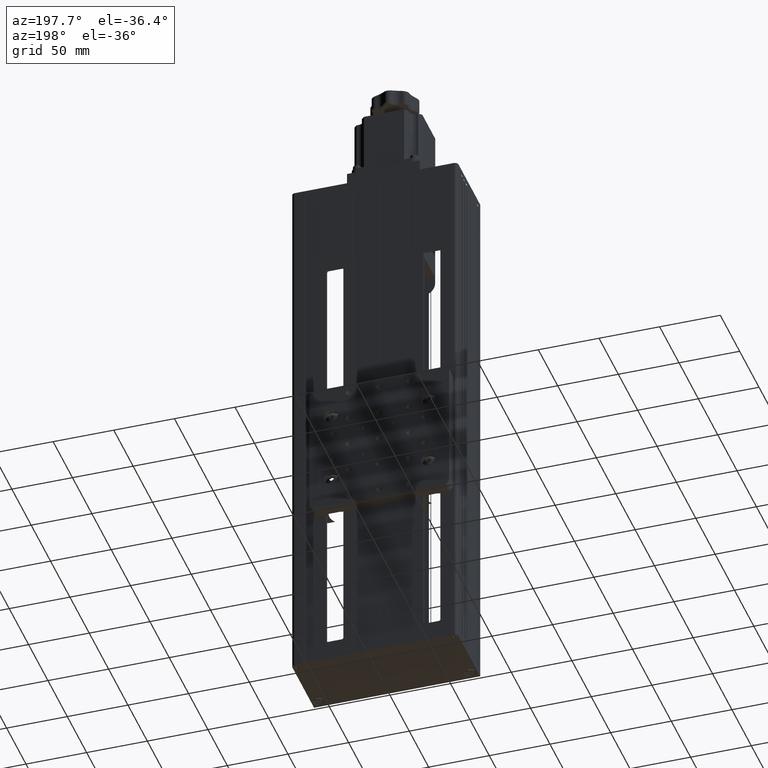
[diagram: clean part render]
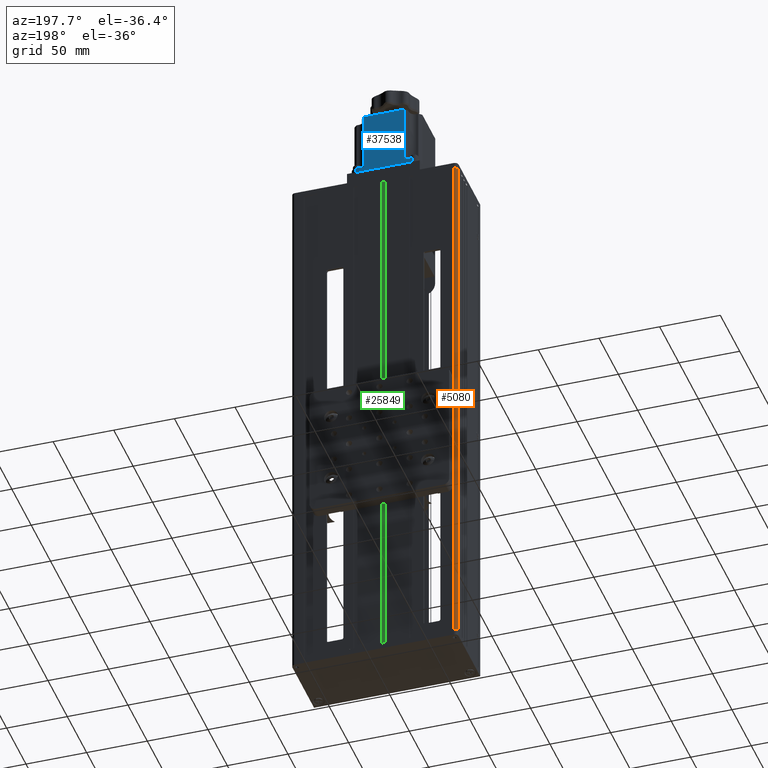
[diagram: same view with three faces highlighted in distinct colors, each labeled with its STEP entity id]
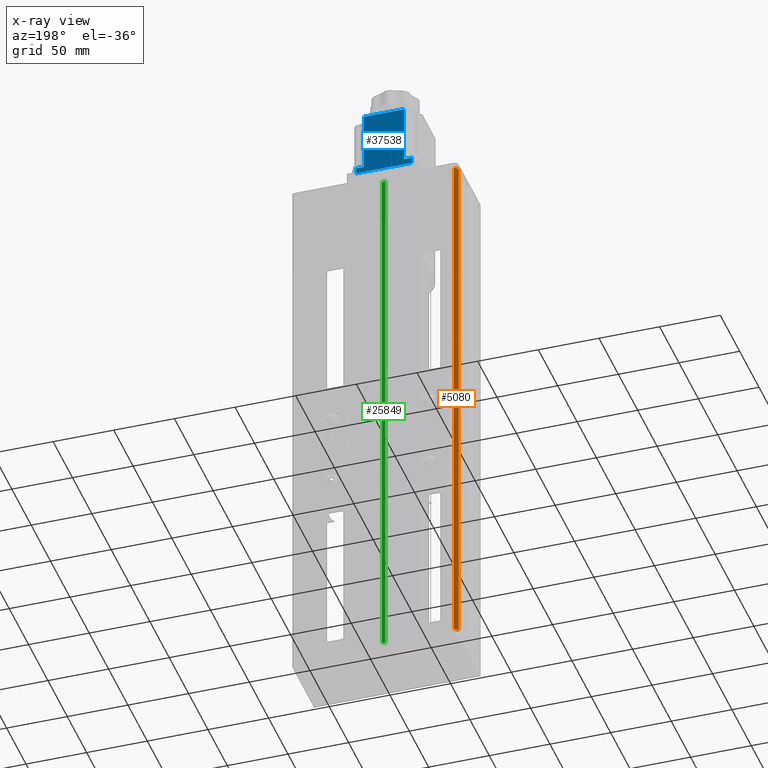
[diagram: x-ray of the same camera — body ghosted, the three highlighted faces saturated]
A machine part, auxiliary view with three faces highlighted in distinct colors.
The next image is the same camera in x-ray (body ghosted, the three faces saturated) — at least one of them is partly hidden behind the body in this view.
Their STEP definitions:

[orange] entity #5080 — the highlighted cylindrical surface (edge-blend (fillet) strip) has radius 3 mm, axis along (-0, -0, -1).
#2060 = CIRCLE ( 'NONE', #25355, 3.000000000000002700 ) ;
#3178 = CYLINDRICAL_SURFACE ( 'NONE', #9782, 3.000000000000002700 ) ;
#3221 = ORIENTED_EDGE ( 'NONE', *, *, #30543, .F. ) ;
#5080 = ADVANCED_FACE ( 'NONE', ( #16128 ), #3178, .T. ) ;
#5867 = CARTESIAN_POINT ( 'NONE',  ( -68.61080835603992500, 50.08234937935211000, 225.0000000000000000 ) ) ;
#7637 = VERTEX_POINT ( 'NONE', #13888 ) ;
#7799 = EDGE_CURVE ( 'NONE', #28491, #42836, #16029, .T. ) ;
#8061 = DIRECTION ( 'NONE',  ( 0.0000000000000000000, 0.0000000000000000000, 1.000000000000000000 ) ) ;
#8540 = CARTESIAN_POINT ( 'NONE',  ( -68.61080835603992500, 50.08234937935211000, -225.0000000000000000 ) ) ;
#9782 = AXIS2_PLACEMENT_3D ( 'NONE', #38899, #19245, #32554 ) ;
#12508 = DIRECTION ( 'NONE',  ( -0.0000000000000000000, -0.0000000000000000000, -1.000000000000000000 ) ) ;
#13888 = CARTESIAN_POINT ( 'NONE',  ( -68.61080835603992500, 50.08234937935211000, 225.0000000000000000 ) ) ;
#14277 = VERTEX_POINT ( 'NONE', #8540 ) ;
#14991 = VECTOR ( 'NONE', #34555, 1000.000000000000000 ) ;
#16029 = LINE ( 'NONE', #18239, #14991 ) ;
#16128 = FACE_OUTER_BOUND ( 'NONE', #39896, .T. ) ;
#16318 = CIRCLE ( 'NONE', #30899, 3.000000000000002700 ) ;
#16887 = CARTESIAN_POINT ( 'NONE',  ( -68.61080835603992500, 47.08234937935211000, 225.0000000000000000 ) ) ;
#18239 = CARTESIAN_POINT ( 'NONE',  ( -71.61080835603992500, 47.08234937935211000, 225.0000000000000000 ) ) ;
#19245 = DIRECTION ( 'NONE',  ( -0.0000000000000000000, -0.0000000000000000000, -1.000000000000000000 ) ) ;
#20209 = DIRECTION ( 'NONE',  ( 1.000000000000000000, 0.0000000000000000000, 0.0000000000000000000 ) ) ;
#25042 = ORIENTED_EDGE ( 'NONE', *, *, #26623, .T. ) ;
#25355 = AXIS2_PLACEMENT_3D ( 'NONE', #27919, #8061, #31253 ) ;
#25932 = EDGE_CURVE ( 'NONE', #14277, #42836, #2060, .T. ) ;
#26623 = EDGE_CURVE ( 'NONE', #7637, #14277, #32274, .T. ) ;
#27919 = CARTESIAN_POINT ( 'NONE',  ( -68.61080835603992500, 47.08234937935211000, -225.0000000000000000 ) ) ;
#28491 = VERTEX_POINT ( 'NONE', #31606 ) ;
#30543 = EDGE_CURVE ( 'NONE', #7637, #28491, #16318, .T. ) ;
#30899 = AXIS2_PLACEMENT_3D ( 'NONE', #16887, #40047, #20209 ) ;
#31253 = DIRECTION ( 'NONE',  ( 1.000000000000000000, 0.0000000000000000000, 0.0000000000000000000 ) ) ;
#31606 = CARTESIAN_POINT ( 'NONE',  ( -71.61080835603992500, 47.08234937935211000, 225.0000000000000000 ) ) ;
#32274 = LINE ( 'NONE', #5867, #40004 ) ;
#32554 = DIRECTION ( 'NONE',  ( -1.000000000000000000, 0.0000000000000000000, 0.0000000000000000000 ) ) ;
#33199 = ORIENTED_EDGE ( 'NONE', *, *, #25932, .T. ) ;
#34555 = DIRECTION ( 'NONE',  ( -0.0000000000000000000, -0.0000000000000000000, -1.000000000000000000 ) ) ;
#35207 = CARTESIAN_POINT ( 'NONE',  ( -71.61080835603992500, 47.08234937935211000, -225.0000000000000000 ) ) ;
#38899 = CARTESIAN_POINT ( 'NONE',  ( -68.61080835603992500, 47.08234937935211000, 225.0000000000000000 ) ) ;
#39896 = EDGE_LOOP ( 'NONE', ( #33199, #40624, #3221, #25042 ) ) ;
#40004 = VECTOR ( 'NONE', #12508, 1000.000000000000000 ) ;
#40047 = DIRECTION ( 'NONE',  ( 0.0000000000000000000, 0.0000000000000000000, 1.000000000000000000 ) ) ;
#40624 = ORIENTED_EDGE ( 'NONE', *, *, #7799, .F. ) ;
#42836 = VERTEX_POINT ( 'NONE', #35207 ) ;

[blue] entity #37538 — the highlighted planar face has unit normal (-0, -1, 0).
#193 = EDGE_CURVE ( 'NONE', #15866, #26335, #5019, .T. ) ;
#1162 = LINE ( 'NONE', #22450, #26503 ) ;
#3760 = FACE_OUTER_BOUND ( 'NONE', #34774, .T. ) ;
#4646 = LINE ( 'NONE', #19309, #13434 ) ;
#5019 = LINE ( 'NONE', #32890, #12772 ) ;
#5112 = EDGE_CURVE ( 'NONE', #23980, #11169, #19725, .T. ) ;
#5665 = PLANE ( 'NONE',  #9101 ) ;
#7599 = CARTESIAN_POINT ( 'NONE',  ( -27.18080835603993600, 48.58234937935198900, 244.0000000000000000 ) ) ;
#9101 = AXIS2_PLACEMENT_3D ( 'NONE', #18977, #42108, #22292 ) ;
#9175 = DIRECTION ( 'NONE',  ( -0.0000000000000000000, 0.0000000000000000000, 1.000000000000000000 ) ) ;
#9551 = CARTESIAN_POINT ( 'NONE',  ( 17.38919164396007100, 48.58234937935198900, 239.0000000000000000 ) ) ;
#9563 = VECTOR ( 'NONE', #15311, 1000.000000000000000 ) ;
#9746 = DIRECTION ( 'NONE',  ( 1.000000000000000000, -1.239088197126290600E-016, -0.0000000000000000000 ) ) ;
#9957 = ORIENTED_EDGE ( 'NONE', *, *, #31445, .T. ) ;
#10775 = ORIENTED_EDGE ( 'NONE', *, *, #34911, .T. ) ;
#11169 = VERTEX_POINT ( 'NONE', #42188 ) ;
#12772 = VECTOR ( 'NONE', #9746, 1000.000000000000000 ) ;
#13197 = ORIENTED_EDGE ( 'NONE', *, *, #5112, .F. ) ;
#13212 = CARTESIAN_POINT ( 'NONE',  ( 5.959191643960084100, 48.58234937935198900, 292.8000000000000100 ) ) ;
#13434 = VECTOR ( 'NONE', #39087, 1000.000000000000000 ) ;
#14574 = ORIENTED_EDGE ( 'NONE', *, *, #38293, .T. ) ;
#14642 = LINE ( 'NONE', #26624, #27048 ) ;
#14673 = ORIENTED_EDGE ( 'NONE', *, *, #37720, .T. ) ;
#15128 = CARTESIAN_POINT ( 'NONE',  ( 5.959191643960084100, 48.58234937935198900, 239.0000000000000000 ) ) ;
#15311 = DIRECTION ( 'NONE',  ( 1.000000000000000000, -1.239088197126290600E-016, -0.0000000000000000000 ) ) ;
#15577 = LINE ( 'NONE', #15128, #32153 ) ;
#15866 = VERTEX_POINT ( 'NONE', #31486 ) ;
#17008 = CARTESIAN_POINT ( 'NONE',  ( 12.38919164396007100, 48.58234937935198900, 239.0000000000000000 ) ) ;
#17223 = VERTEX_POINT ( 'NONE', #19201 ) ;
#17976 = ORIENTED_EDGE ( 'NONE', *, *, #18824, .T. ) ;
#18536 = CARTESIAN_POINT ( 'NONE',  ( 12.38919164396007100, 48.58234937935198900, 244.0000000000000000 ) ) ;
#18824 = EDGE_CURVE ( 'NONE', #40703, #18902, #4646, .T. ) ;
#18902 = VERTEX_POINT ( 'NONE', #13212 ) ;
#18977 = CARTESIAN_POINT ( 'NONE',  ( 17.38919164396007100, 48.58234937935198900, 239.0000000000000000 ) ) ;
#19201 = CARTESIAN_POINT ( 'NONE',  ( 5.959191643960084100, 48.58234937935198900, 244.0000000000000000 ) ) ;
#19309 = CARTESIAN_POINT ( 'NONE',  ( 17.38919164396007100, 48.58234937935198900, 292.8000000000000100 ) ) ;
#19725 = LINE ( 'NONE', #9551, #29601 ) ;
#22292 = DIRECTION ( 'NONE',  ( -1.000000000000000000, 1.239088197126290600E-016, 0.0000000000000000000 ) ) ;
#22450 = CARTESIAN_POINT ( 'NONE',  ( -33.61080835603996100, 48.58234937935198900, 239.0000000000000000 ) ) ;
#23111 = DIRECTION ( 'NONE',  ( -0.0000000000000000000, 0.0000000000000000000, 1.000000000000000000 ) ) ;
#23598 = ORIENTED_EDGE ( 'NONE', *, *, #30800, .T. ) ;
#23980 = VERTEX_POINT ( 'NONE', #36419 ) ;
#26335 = VERTEX_POINT ( 'NONE', #7599 ) ;
#26503 = VECTOR ( 'NONE', #9175, 1000.000000000000000 ) ;
#26624 = CARTESIAN_POINT ( 'NONE',  ( -27.18080835603993600, 48.58234937935198900, 292.8000000000000100 ) ) ;
#27048 = VECTOR ( 'NONE', #23111, 1000.000000000000000 ) ;
#28473 = VECTOR ( 'NONE', #36790, 1000.000000000000000 ) ;
#28502 = CARTESIAN_POINT ( 'NONE',  ( 17.38919164396007100, 48.58234937935198900, 244.0000000000000000 ) ) ;
#28663 = ORIENTED_EDGE ( 'NONE', *, *, #193, .T. ) ;
#29601 = VECTOR ( 'NONE', #35989, 1000.000000000000000 ) ;
#30800 = EDGE_CURVE ( 'NONE', #17223, #31814, #40090, .T. ) ;
#31445 = EDGE_CURVE ( 'NONE', #23980, #15866, #1162, .T. ) ;
#31486 = CARTESIAN_POINT ( 'NONE',  ( -33.61080835603996100, 48.58234937935198900, 244.0000000000000000 ) ) ;
#31814 = VERTEX_POINT ( 'NONE', #18536 ) ;
#32076 = DIRECTION ( 'NONE',  ( 0.0000000000000000000, 0.0000000000000000000, -1.000000000000000000 ) ) ;
#32153 = VECTOR ( 'NONE', #32076, 1000.000000000000000 ) ;
#32890 = CARTESIAN_POINT ( 'NONE',  ( 17.38919164396007100, 48.58234937935198900, 244.0000000000000000 ) ) ;
#34774 = EDGE_LOOP ( 'NONE', ( #28663, #14673, #17976, #10775, #23598, #14574, #13197, #9957 ) ) ;
#34911 = EDGE_CURVE ( 'NONE', #18902, #17223, #15577, .T. ) ;
#35989 = DIRECTION ( 'NONE',  ( 1.000000000000000000, -1.239088197126290600E-016, 0.0000000000000000000 ) ) ;
#36419 = CARTESIAN_POINT ( 'NONE',  ( -33.61080835603996100, 48.58234937935198900, 239.0000000000000000 ) ) ;
#36790 = DIRECTION ( 'NONE',  ( 0.0000000000000000000, -0.0000000000000000000, -1.000000000000000000 ) ) ;
#37538 = ADVANCED_FACE ( 'NONE', ( #3760 ), #5665, .F. ) ;
#37720 = EDGE_CURVE ( 'NONE', #26335, #40703, #14642, .T. ) ;
#38266 = LINE ( 'NONE', #17008, #28473 ) ;
#38293 = EDGE_CURVE ( 'NONE', #31814, #11169, #38266, .T. ) ;
#39087 = DIRECTION ( 'NONE',  ( 1.000000000000000000, -1.239088197126290600E-016, 0.0000000000000000000 ) ) ;
#40090 = LINE ( 'NONE', #28502, #9563 ) ;
#40703 = VERTEX_POINT ( 'NONE', #41776 ) ;
#41776 = CARTESIAN_POINT ( 'NONE',  ( -27.18080835603992900, 48.58234937935198900, 292.8000000000000100 ) ) ;
#42108 = DIRECTION ( 'NONE',  ( -1.239088197126290600E-016, -1.000000000000000000, 0.0000000000000000000 ) ) ;
#42188 = CARTESIAN_POINT ( 'NONE',  ( 12.38919164396007100, 48.58234937935198900, 239.0000000000000000 ) ) ;

[green] entity #25849 — the highlighted planar face has unit normal (0, 1, 0).
#264 = CARTESIAN_POINT ( 'NONE',  ( -12.11080835603998400, 49.78234937935209800, -225.0000000000000000 ) ) ;
#741 = CARTESIAN_POINT ( 'NONE',  ( -12.11080835603998400, 49.78234937935209800, 225.0000000000000000 ) ) ;
#1001 = VECTOR ( 'NONE', #15301, 1000.000000000000000 ) ;
#1182 = EDGE_CURVE ( 'NONE', #29220, #16261, #9024, .T. ) ;
#3469 = VECTOR ( 'NONE', #5191, 1000.000000000000000 ) ;
#4019 = DIRECTION ( 'NONE',  ( 0.0000000000000000000, -0.0000000000000000000, 1.000000000000000000 ) ) ;
#4448 = VERTEX_POINT ( 'NONE', #34249 ) ;
#5191 = DIRECTION ( 'NONE',  ( -0.0000000000000000000, -0.0000000000000000000, -1.000000000000000000 ) ) ;
#7201 = PLANE ( 'NONE',  #39477 ) ;
#9024 = LINE ( 'NONE', #264, #26613 ) ;
#9550 = EDGE_LOOP ( 'NONE', ( #38375, #29066, #41388, #29406 ) ) ;
#13315 = LINE ( 'NONE', #15168, #3469 ) ;
#15168 = CARTESIAN_POINT ( 'NONE',  ( -12.11080835603998400, 49.78234937935209800, 225.0000000000000000 ) ) ;
#15301 = DIRECTION ( 'NONE',  ( -0.0000000000000000000, -0.0000000000000000000, -1.000000000000000000 ) ) ;
#16261 = VERTEX_POINT ( 'NONE', #17378 ) ;
#17024 = EDGE_CURVE ( 'NONE', #4448, #16261, #26325, .T. ) ;
#17378 = CARTESIAN_POINT ( 'NONE',  ( -9.110808356039983700, 49.78234937935209800, -225.0000000000000000 ) ) ;
#17633 = DIRECTION ( 'NONE',  ( 1.000000000000000000, 0.0000000000000000000, 0.0000000000000000000 ) ) ;
#19763 = EDGE_CURVE ( 'NONE', #36637, #29220, #13315, .T. ) ;
#21169 = FACE_OUTER_BOUND ( 'NONE', #9550, .T. ) ;
#23803 = DIRECTION ( 'NONE',  ( 0.0000000000000000000, 1.000000000000000000, 0.0000000000000000000 ) ) ;
#25849 = ADVANCED_FACE ( 'NONE', ( #21169 ), #7201, .T. ) ;
#26325 = LINE ( 'NONE', #35115, #1001 ) ;
#26613 = VECTOR ( 'NONE', #26708, 1000.000000000000000 ) ;
#26708 = DIRECTION ( 'NONE',  ( 1.000000000000000000, 0.0000000000000000000, 0.0000000000000000000 ) ) ;
#27008 = CARTESIAN_POINT ( 'NONE',  ( -12.11080835603998400, 49.78234937935209800, 225.0000000000000000 ) ) ;
#27490 = CARTESIAN_POINT ( 'NONE',  ( -12.11080835603998400, 49.78234937935209800, 225.0000000000000000 ) ) ;
#29066 = ORIENTED_EDGE ( 'NONE', *, *, #19763, .F. ) ;
#29220 = VERTEX_POINT ( 'NONE', #29359 ) ;
#29359 = CARTESIAN_POINT ( 'NONE',  ( -12.11080835603998400, 49.78234937935209800, -225.0000000000000000 ) ) ;
#29406 = ORIENTED_EDGE ( 'NONE', *, *, #17024, .T. ) ;
#34249 = CARTESIAN_POINT ( 'NONE',  ( -9.110808356039983700, 49.78234937935209800, 225.0000000000000000 ) ) ;
#34524 = VECTOR ( 'NONE', #17633, 1000.000000000000000 ) ;
#35115 = CARTESIAN_POINT ( 'NONE',  ( -9.110808356039983700, 49.78234937935209800, 225.0000000000000000 ) ) ;
#35570 = LINE ( 'NONE', #27490, #34524 ) ;
#36156 = EDGE_CURVE ( 'NONE', #36637, #4448, #35570, .T. ) ;
#36637 = VERTEX_POINT ( 'NONE', #27008 ) ;
#38375 = ORIENTED_EDGE ( 'NONE', *, *, #1182, .F. ) ;
#39477 = AXIS2_PLACEMENT_3D ( 'NONE', #741, #23803, #4019 ) ;
#41388 = ORIENTED_EDGE ( 'NONE', *, *, #36156, .T. ) ;